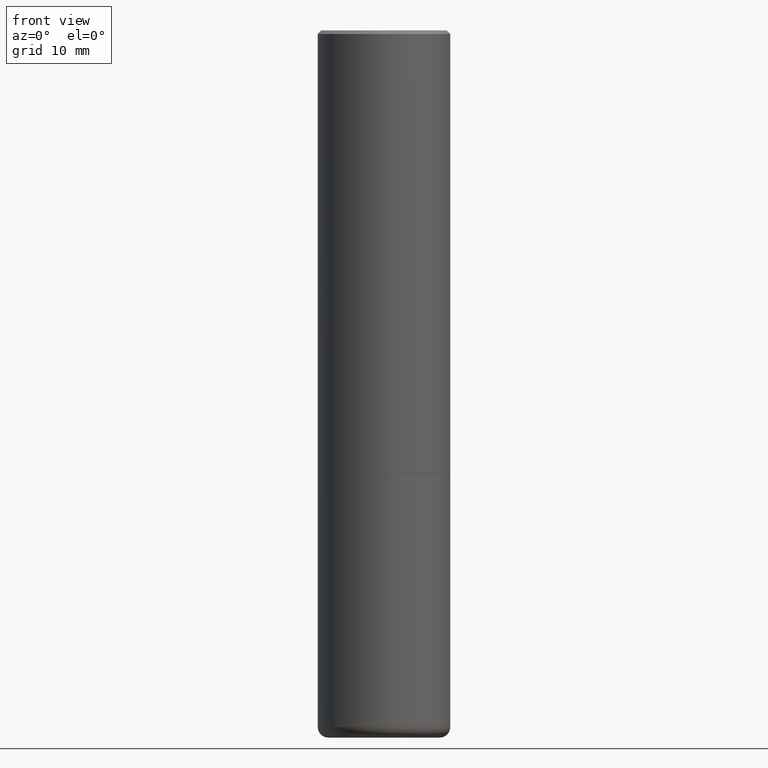
[diagram: clean part render]
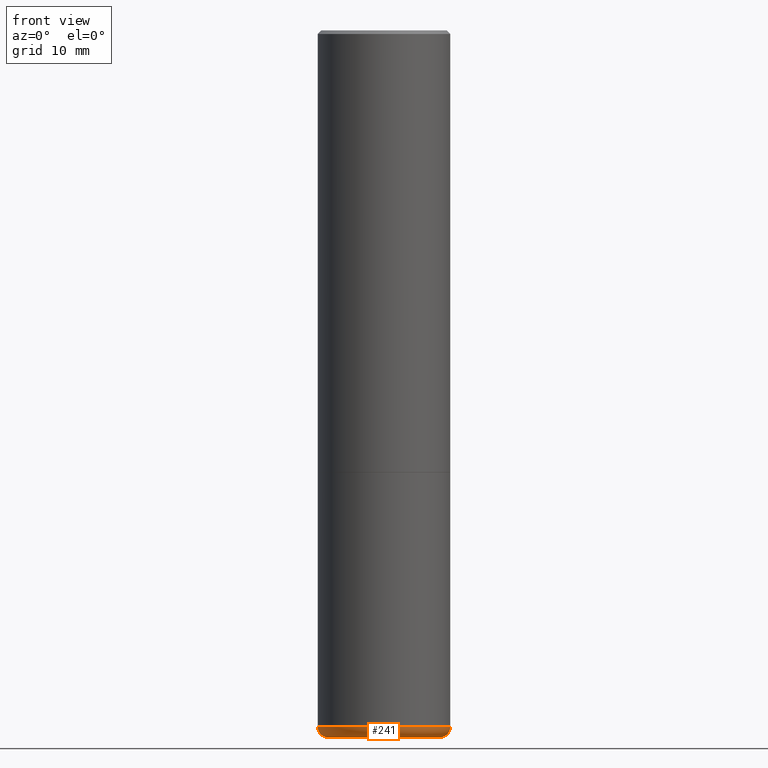
[diagram: same view with one face highlighted and labeled with its STEP entity id]
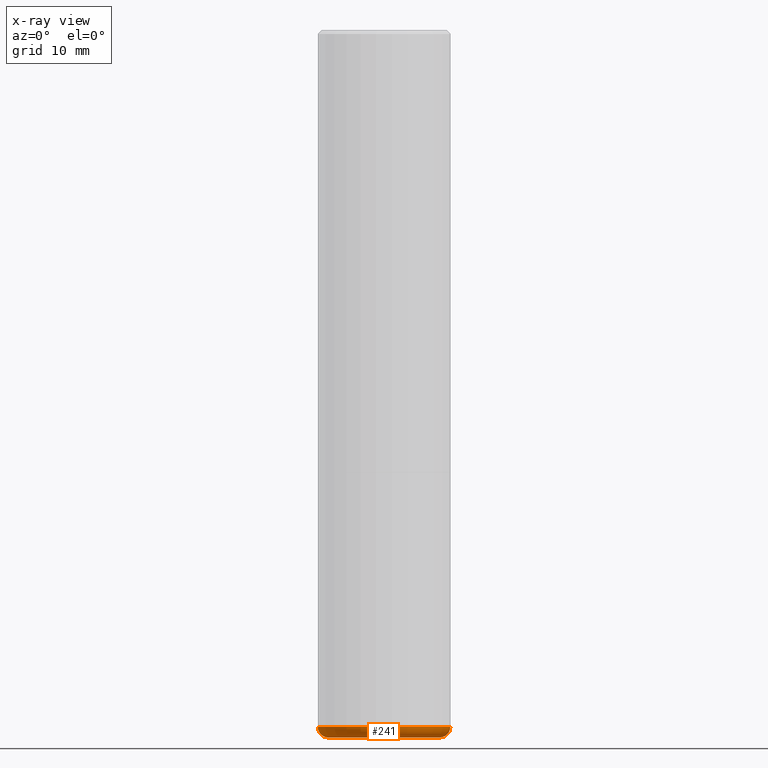
[diagram: x-ray of the same camera — body ghosted, the highlighted face saturated]
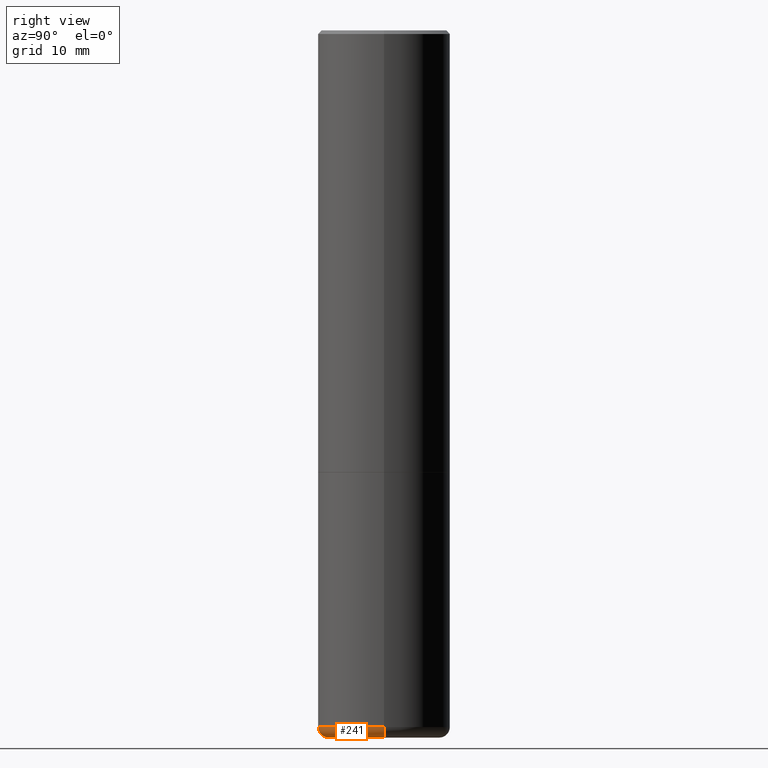
[diagram: same view with one face highlighted and labeled with its STEP entity id]
A machine part, front view. The second image highlights one B-rep face of the part: STEP entity #241.
The next image is the same camera in x-ray: the body ghosted, the highlighted face saturated — about 0% of this face is hidden behind the body in this view.
A second angle (right view) of the same face is appended — the face is thin or edge-on in the first view.
In plain terms, the highlighted toroidal blend (fillet) surface has major radius 8.001 mm and minor (blend) radius 1.524 mm.
Its self-contained STEP definition (entity closure, byte-faithful):
#5 = EDGE_CURVE ( 'NONE', #339, #290, #391, .T. ) ;
#20 = ORIENTED_EDGE ( 'NONE', *, *, #311, .F. ) ;
#31 = AXIS2_PLACEMENT_3D ( 'NONE', #125, #250, #407 ) ;
#37 = EDGE_CURVE ( 'NONE', #319, #355, #297, .T. ) ;
#38 = CARTESIAN_POINT ( 'NONE',  ( 0.3750000000000001110, -1.637504747917434403E-14, -3.939999999999999947 ) ) ;
#41 = DIRECTION ( 'NONE',  ( 1.000000000000000000, -6.982962677686267499E-15, 0.000000000000000000 ) ) ;
#43 = EDGE_CURVE ( 'NONE', #290, #355, #307, .T. ) ;
#49 = AXIS2_PLACEMENT_3D ( 'NONE', #228, #50, #376 ) ;
#50 = DIRECTION ( 'NONE',  ( -2.445468806185136597E-29, 3.491481338843145583E-15, 1.000000000000000000 ) ) ;
#52 = DIRECTION ( 'NONE',  ( 1.000000000000000000, -6.982962677686279332E-15, 0.000000000000000000 ) ) ;
#64 = DIRECTION ( 'NONE',  ( -2.445468806185136597E-29, 3.491481338843145583E-15, 1.000000000000000000 ) ) ;
#80 = CIRCLE ( 'NONE', #31, 0.06000000000000017819 ) ;
#95 = EDGE_LOOP ( 'NONE', ( #20, #148, #229, #269 ) ) ;
#125 = CARTESIAN_POINT ( 'NONE',  ( -0.3150000000000000577, -1.151822685739767881E-14, -3.939999999999999947 ) ) ;
#136 = TOROIDAL_SURFACE ( 'NONE', #192, 0.3150000000000000577, 0.06000000000000017819 ) ;
#148 = ORIENTED_EDGE ( 'NONE', *, *, #5, .T. ) ;
#150 = CARTESIAN_POINT ( 'NONE',  ( -0.3750000000000001110, -1.109190121594161832E-14, -3.939999999999999947 ) ) ;
#175 = DIRECTION ( 'NONE',  ( -6.982962677686266711E-15, -1.000000000000000000, 3.491481338843145583E-15 ) ) ;
#192 = AXIS2_PLACEMENT_3D ( 'NONE', #315, #64, #312 ) ;
#203 = AXIS2_PLACEMENT_3D ( 'NONE', #394, #363, #41 ) ;
#228 = CARTESIAN_POINT ( 'NONE',  ( 9.635147096369438236E-29, -1.375643647504199401E-14, -3.939999999999999947 ) ) ;
#229 = ORIENTED_EDGE ( 'NONE', *, *, #43, .T. ) ;
#241 = ADVANCED_FACE ( 'NONE', ( #248 ), #136, .T. ) ;
#248 = FACE_OUTER_BOUND ( 'NONE', #95, .T. ) ;
#250 = DIRECTION ( 'NONE',  ( 7.105427357601001859E-15, 1.000000000000000000, -3.491481338843145583E-15 ) ) ;
#269 = ORIENTED_EDGE ( 'NONE', *, *, #37, .F. ) ;
#289 = CARTESIAN_POINT ( 'NONE',  ( -0.3150000000000000577, -1.140980847683494509E-14, -4.000000000000000888 ) ) ;
#290 = VERTEX_POINT ( 'NONE', #318 ) ;
#297 = CIRCLE ( 'NONE', #49, 0.3749999999999999445 ) ;
#307 = CIRCLE ( 'NONE', #403, 0.06000000000000017819 ) ;
#311 = EDGE_CURVE ( 'NONE', #339, #319, #80, .T. ) ;
#312 = DIRECTION ( 'NONE',  ( 1.000000000000000000, -6.982962677686263555E-15, 4.883557194083111219E-29 ) ) ;
#315 = CARTESIAN_POINT ( 'NONE',  ( 9.635147096369438236E-29, -1.375643647504199401E-14, -3.939999999999999947 ) ) ;
#318 = CARTESIAN_POINT ( 'NONE',  ( 0.3150000000000000577, -1.616555859884375729E-14, -4.000000000000000888 ) ) ;
#319 = VERTEX_POINT ( 'NONE', #150 ) ;
#339 = VERTEX_POINT ( 'NONE', #289 ) ;
#355 = VERTEX_POINT ( 'NONE', #38 ) ;
#363 = DIRECTION ( 'NONE',  ( -2.445468806185136597E-29, 3.491481338843145583E-15, 1.000000000000000000 ) ) ;
#370 = CARTESIAN_POINT ( 'NONE',  ( 0.3150000000000000577, -1.595606971851316740E-14, -3.939999999999999947 ) ) ;
#376 = DIRECTION ( 'NONE',  ( 1.000000000000000000, -6.982962677686269077E-15, 0.000000000000000000 ) ) ;
#391 = CIRCLE ( 'NONE', #203, 0.3150000000000000577 ) ;
#394 = CARTESIAN_POINT ( 'NONE',  ( 9.781875224740547508E-29, -1.396592535537258391E-14, -4.000000000000000888 ) ) ;
#403 = AXIS2_PLACEMENT_3D ( 'NONE', #370, #175, #52 ) ;
#407 = DIRECTION ( 'NONE',  ( -1.000000000000000000, 7.105427357601001859E-15, 0.000000000000000000 ) ) ;